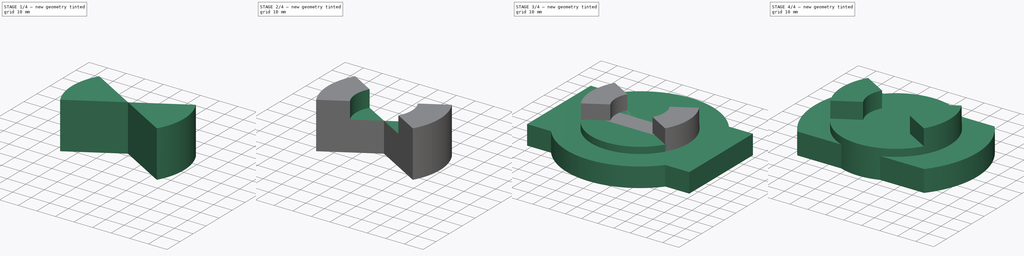
[diagram: build sequence overview — one tinted view per stage of 4, left to right]
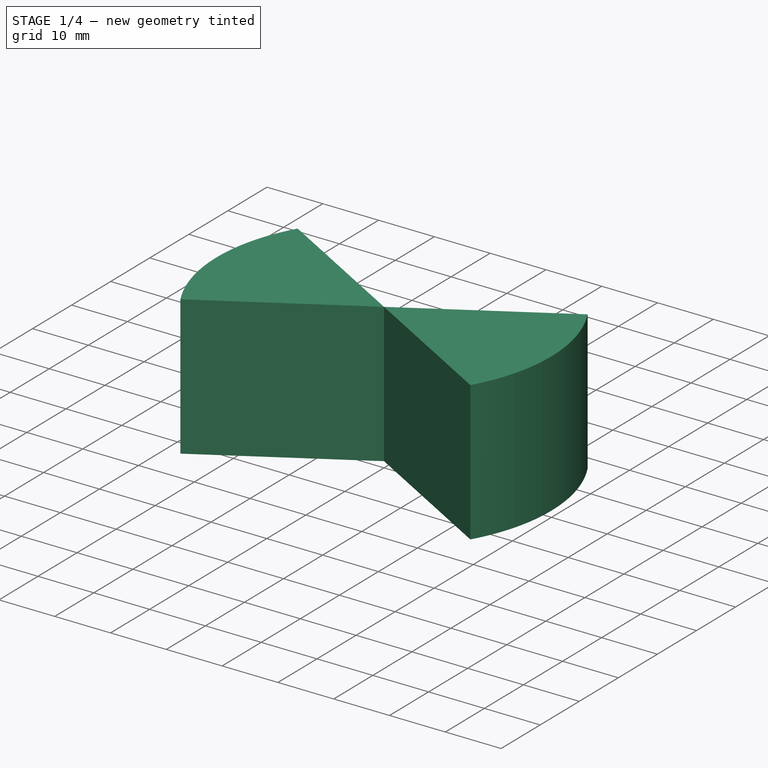
[diagram: stage 1 of 4 — iso view after this stage's code; geometry added in this stage tinted green]
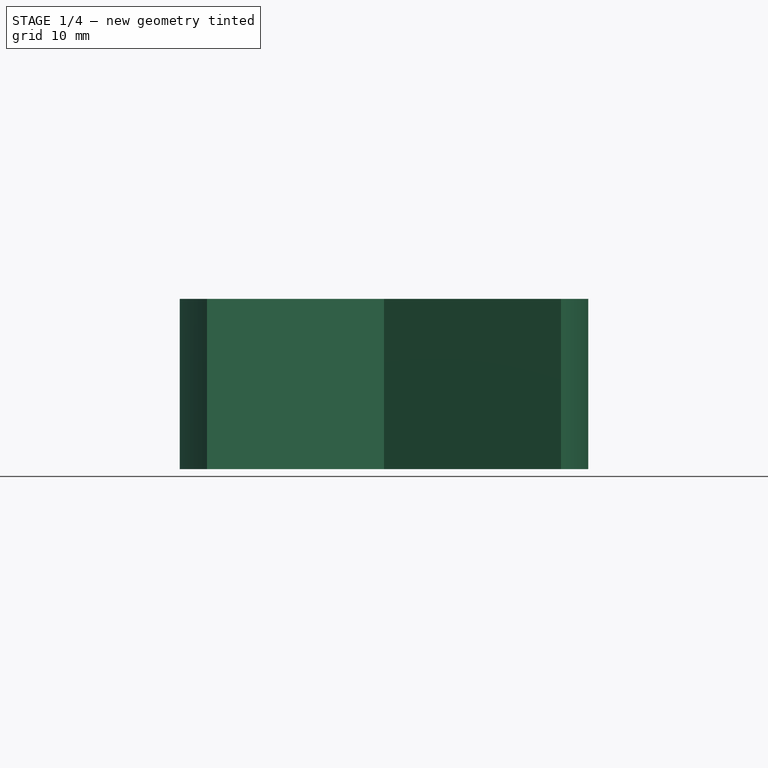
[diagram: stage 1 of 4 — front view after this stage's code; geometry added in this stage tinted green]
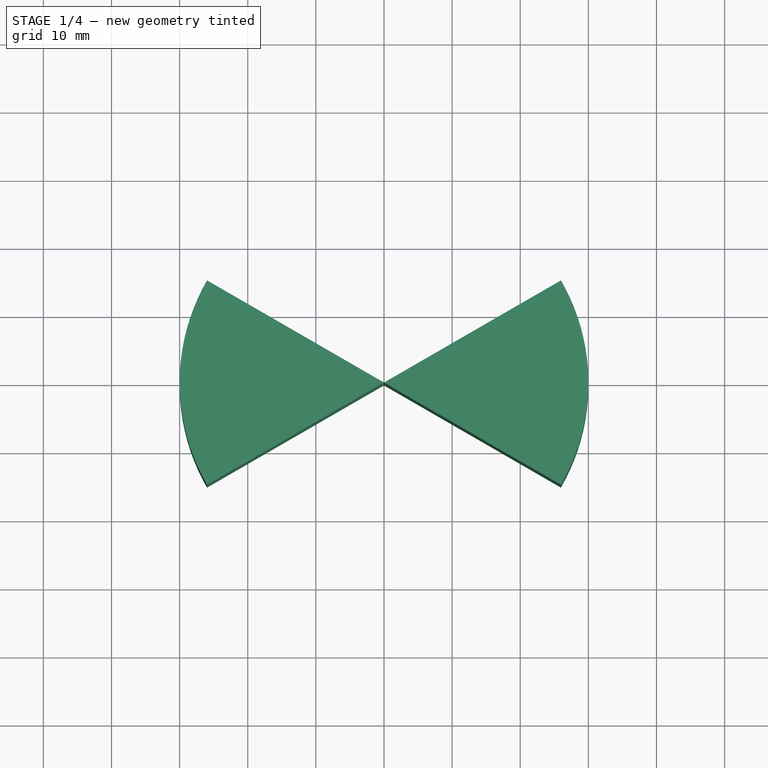
[diagram: stage 1 of 4 — top view after this stage's code; geometry added in this stage tinted green]
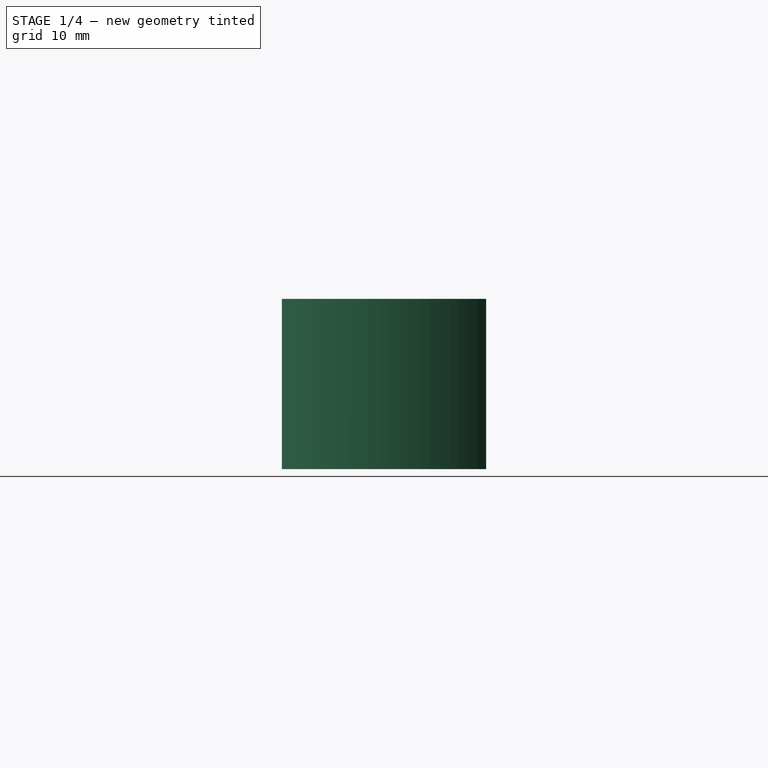
[diagram: stage 1 of 4 — right view after this stage's code; geometry added in this stage tinted green]
FCSTD DOCUMENT  (FreeCAD 0.16R6700 (Git))
Label: ejer5
License: All rights reserved
LicenseURL: http://en.wikipedia.org/wiki/All_rights_reserved
objects: Part::Cylinder×5, Part::MultiFuse×2, Sketcher::SketchObject×1, PartDesign::Pad×1, Part::MultiCommon×1, Part::Cut×1, Part::Feature×1
note: 13 computed .brp shape members not serialized (recipe doc carries the construction recipe); baked Part::Feature solids carry a one-line shape summary decoded from their .brp

FEATURE [Part::Cylinder] Cylinder002  label="Porcion1"
  Angle = 60
  Height = 25
  Placement = pos=(0,0,0) rot=(0,0,-1;0.523599rad)
  Radius = 30
FEATURE [Part::Cylinder] Cylinder003  label="Porcion2"
  Angle = 60
  Height = 25
  Placement = pos=(0,0,0) rot=(0,0,1;2.61799rad)
  Radius = 30
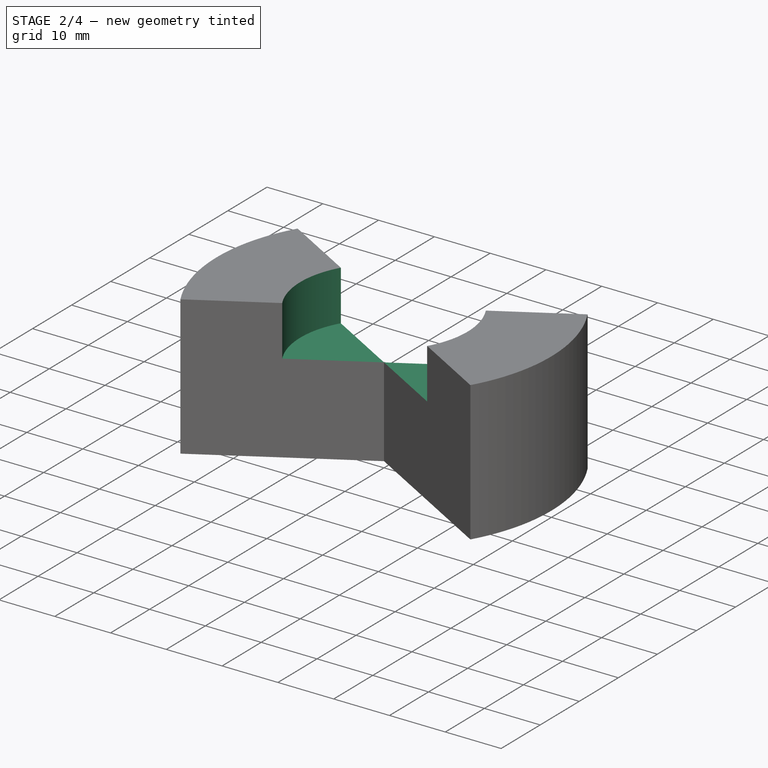
[diagram: stage 2 of 4 — iso view after this stage's code; geometry added in this stage tinted green]
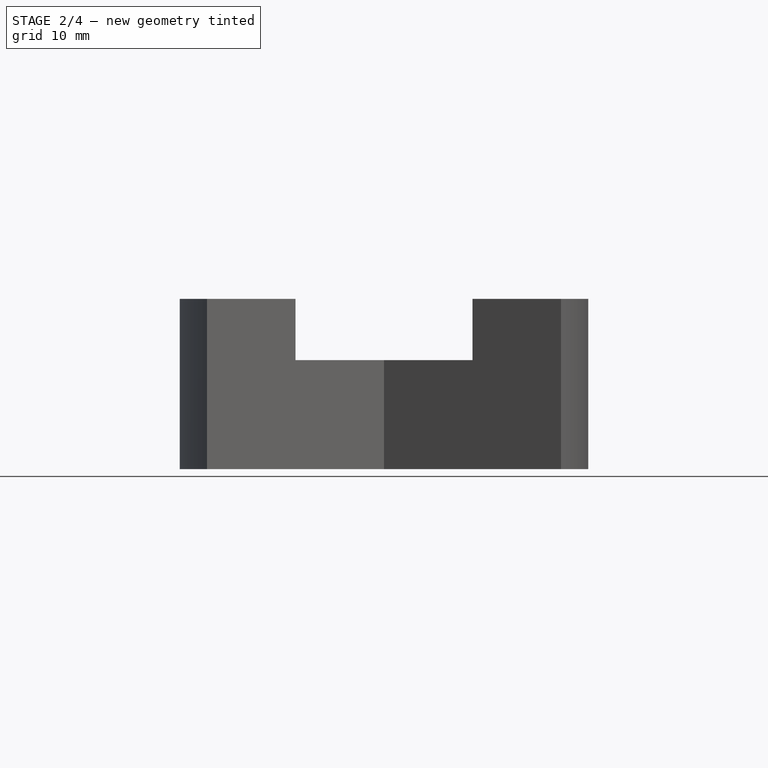
[diagram: stage 2 of 4 — front view after this stage's code; geometry added in this stage tinted green]
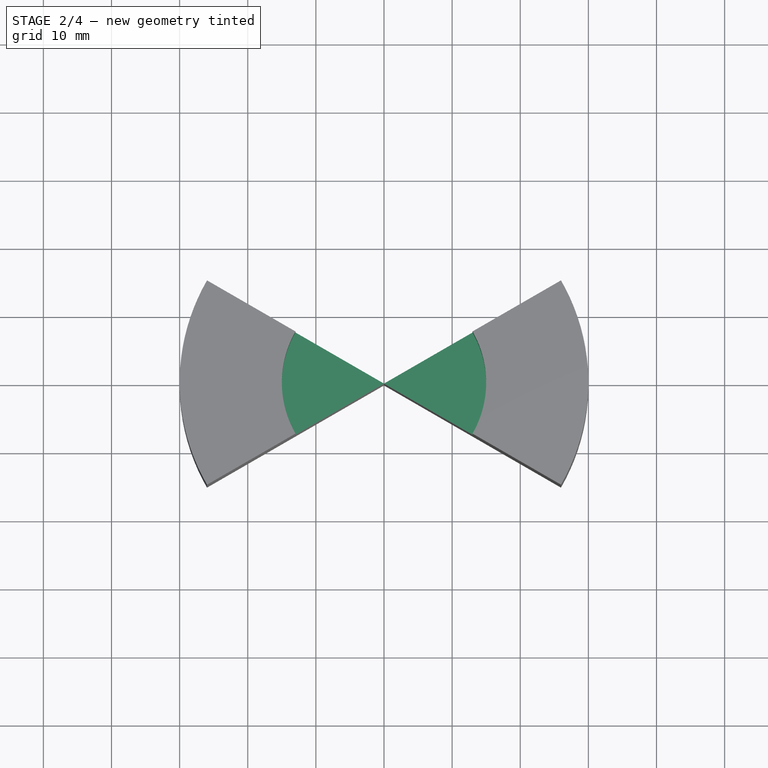
[diagram: stage 2 of 4 — top view after this stage's code; geometry added in this stage tinted green]
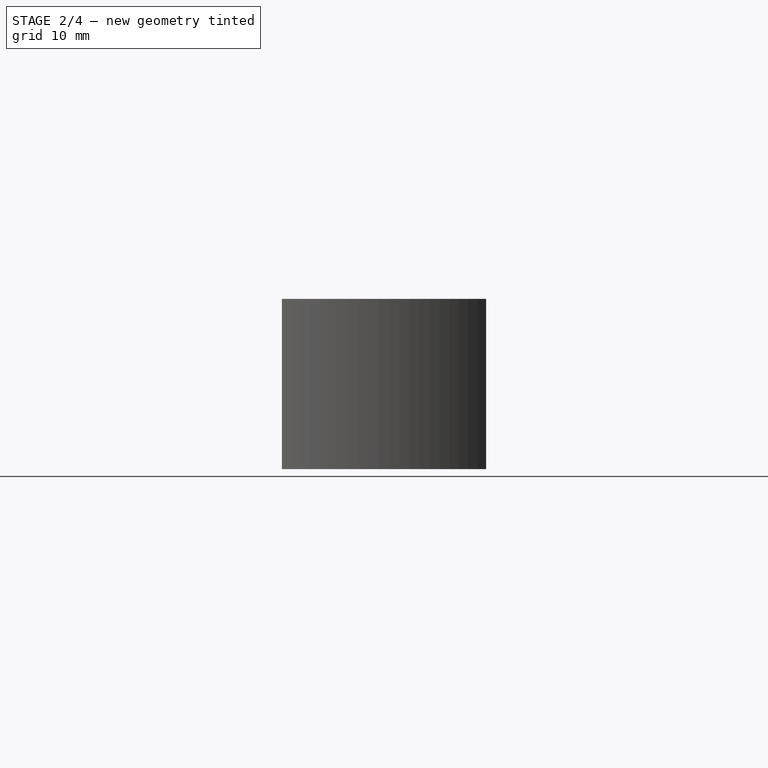
[diagram: stage 2 of 4 — right view after this stage's code; geometry added in this stage tinted green]
FEATURE [Part::Cylinder] Cylinder004  label="Cilindro001"
  Angle = 360
  Height = 10
  Placement = pos=(0,0,16) rot=(0,0,1;0rad)
  Radius = 15
FEATURE [Part::MultiFuse] Fusion
  Shapes = -> [Cylinder003,Cylinder002]
FEATURE [Part::Cut] Cut
  Base = -> Fusion
  Tool = -> Cylinder004
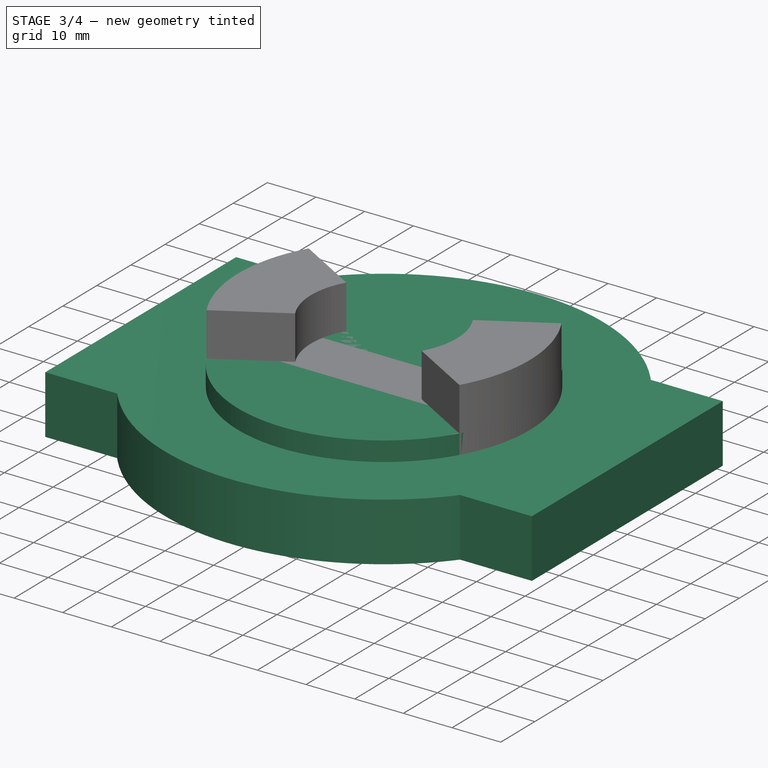
[diagram: stage 3 of 4 — iso view after this stage's code; geometry added in this stage tinted green]
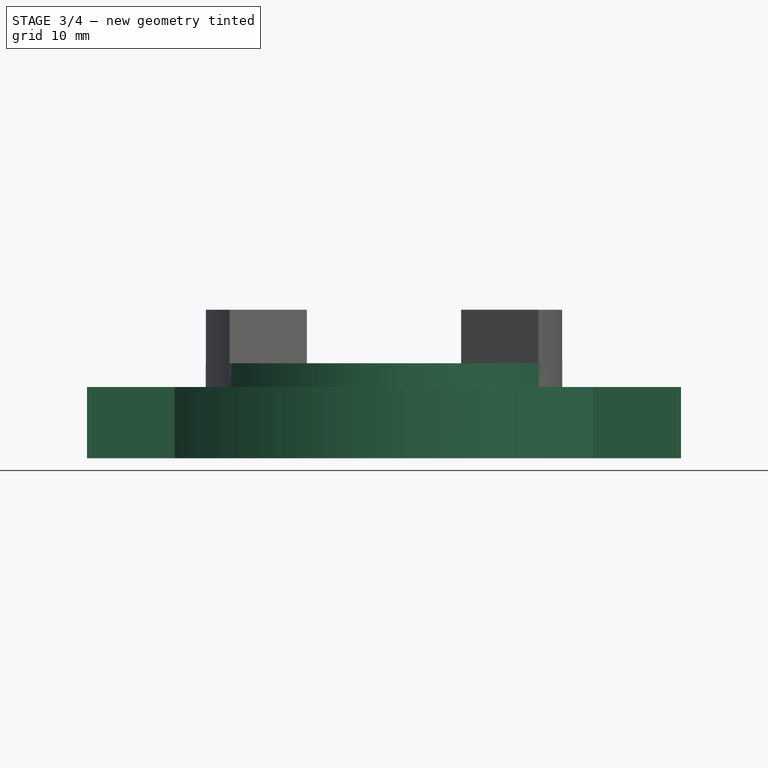
[diagram: stage 3 of 4 — front view after this stage's code; geometry added in this stage tinted green]
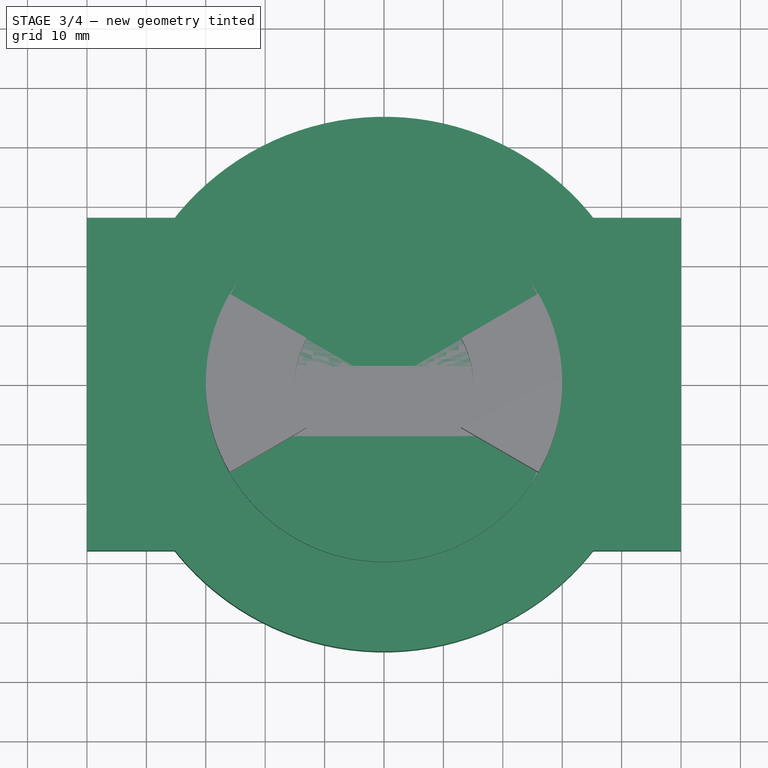
[diagram: stage 3 of 4 — top view after this stage's code; geometry added in this stage tinted green]
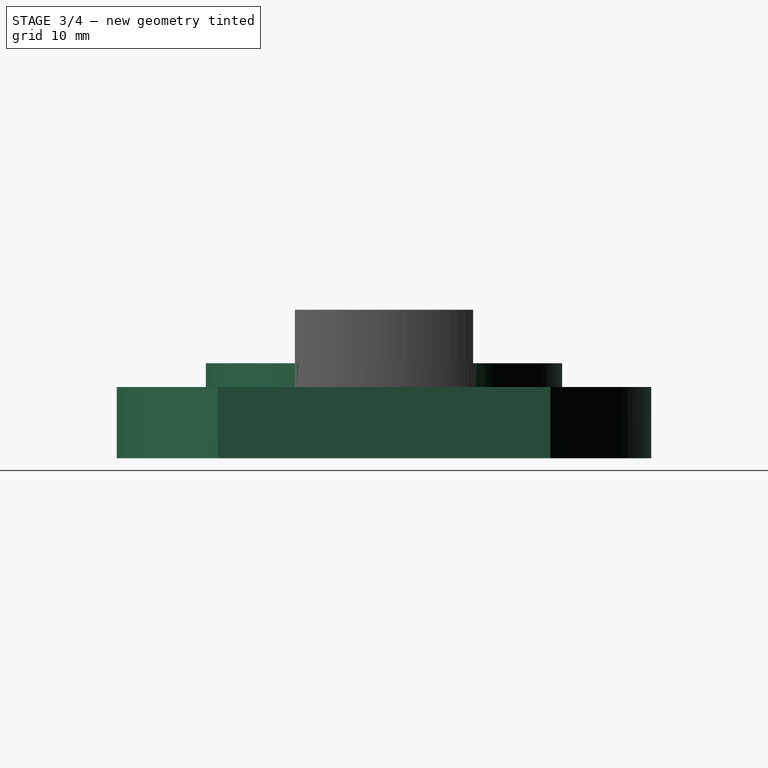
[diagram: stage 3 of 4 — right view after this stage's code; geometry added in this stage tinted green]
FEATURE [Sketcher::SketchObject] Sketch
  sketch-geometry (4):
    g0: LineSegment StartX=-50 StartY=28 StartZ=0 EndX=50 EndY=28 EndZ=0
    g1: LineSegment StartX=50 StartY=28 StartZ=0 EndX=50 EndY=-28 EndZ=0
    g2: LineSegment StartX=50 StartY=-28 StartZ=0 EndX=-50 EndY=-28 EndZ=0
    g3: LineSegment StartX=-50 StartY=-28 StartZ=0 EndX=-50 EndY=28 EndZ=0
  constraints (12):
    c: Coincident(g0,g1)
    c: Coincident(g1,g2)
    c: Coincident(g2,g3)
    c: Coincident(g3,g0)
    c: Horizontal(g0)
    c: Horizontal(g2)
    c: Vertical(g1)
    c: Vertical(g3)
    c: Symmetric(g0,g0,g-2)
    c: Symmetric(g0,g1,g-1)
    c: DistanceY(g1,g1) = 56
    c: DistanceX(g0,g0) = 100
FEATURE [PartDesign::Pad] Pad
  Length = 12
  Length2 = 100
  Sketch = -> Sketch
  Type = 0
FEATURE [Part::Cylinder] Cylinder  label="Cilindro"
  Angle = 360
  Height = 12
  Radius = 45
FEATURE [Part::Cylinder] Cylinder001  label="Cilindro Central"
  Angle = 360
  Height = 16
  Radius = 30
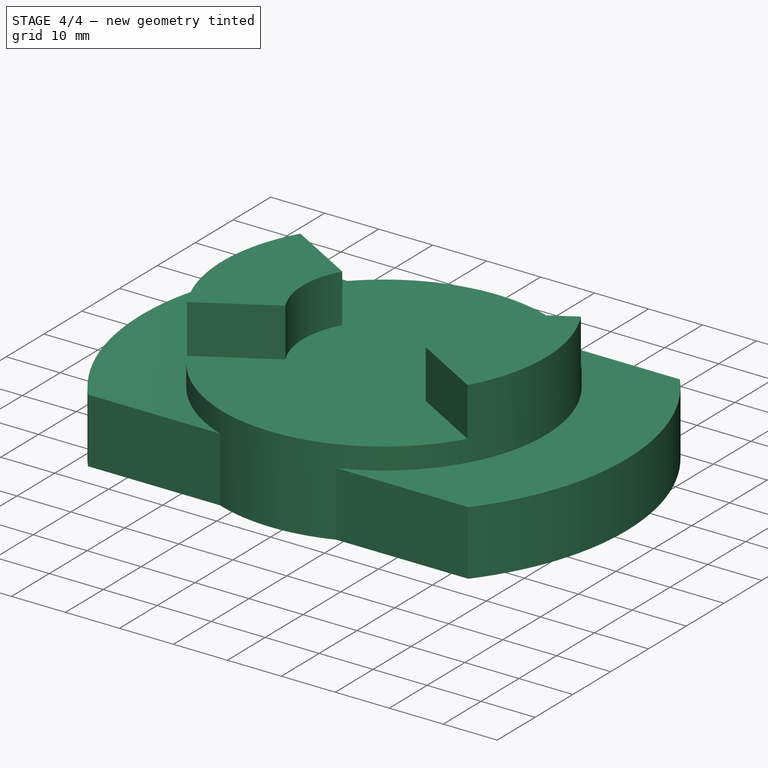
[diagram: stage 4 of 4 — iso view after this stage's code; geometry added in this stage tinted green]
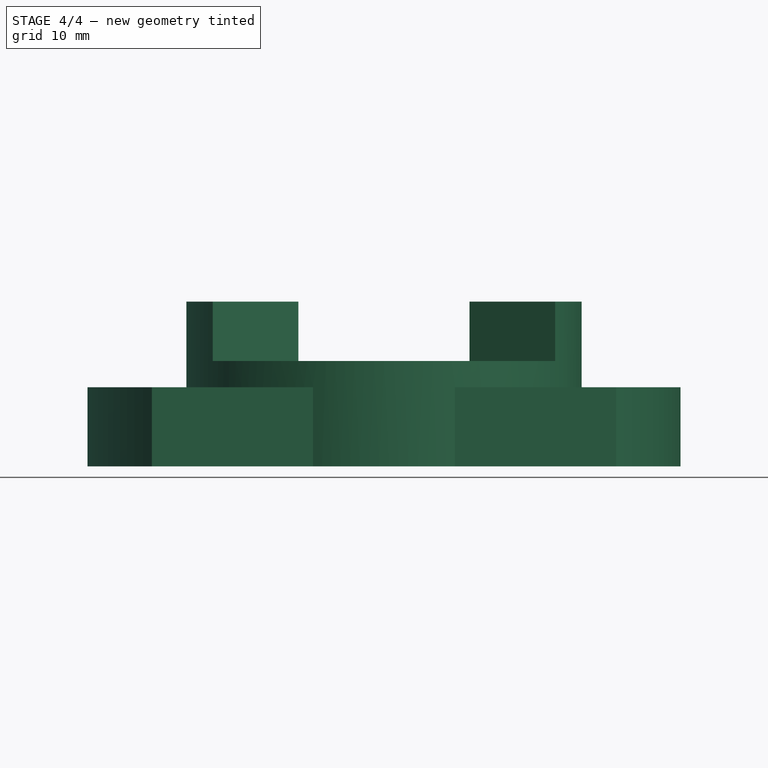
[diagram: stage 4 of 4 — front view after this stage's code; geometry added in this stage tinted green]
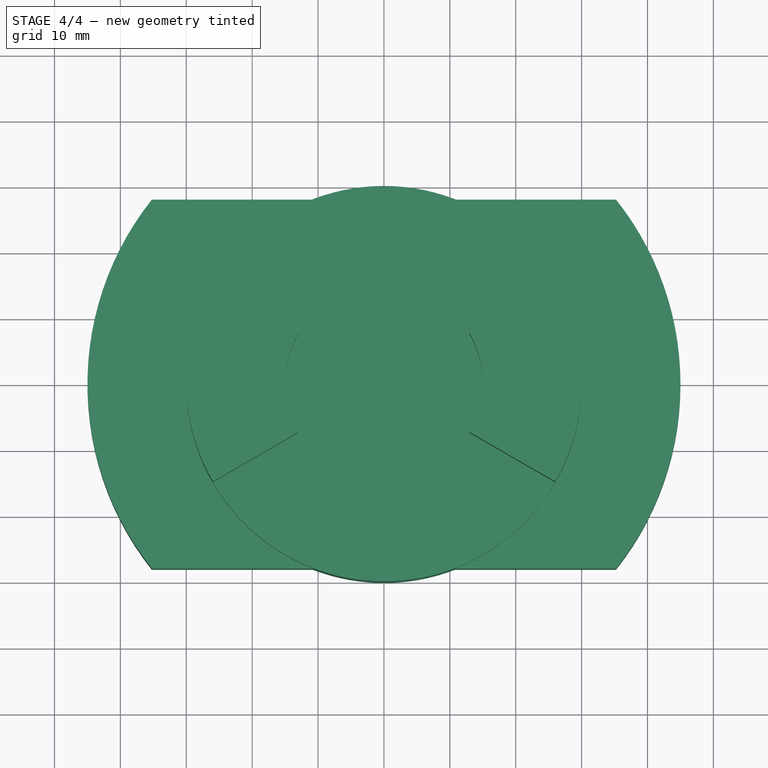
[diagram: stage 4 of 4 — top view after this stage's code; geometry added in this stage tinted green]
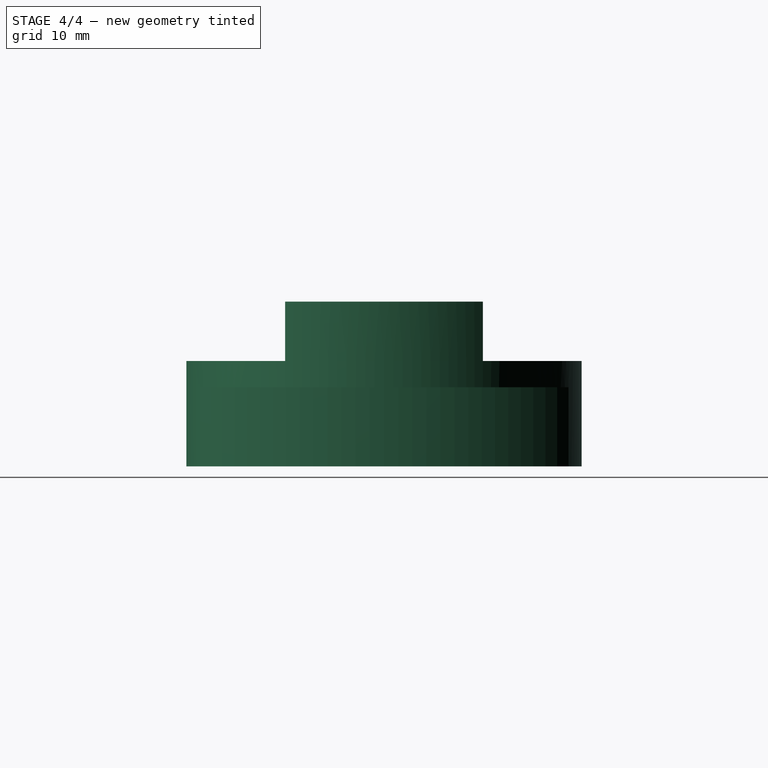
[diagram: stage 4 of 4 — right view after this stage's code; geometry added in this stage tinted green]
FEATURE [Part::MultiCommon] Common
  Shapes = -> [Pad,Cylinder]
FEATURE [Part::MultiFuse] Fusion001
  Shapes = -> [Cut,Common,Cylinder001]
FEATURE [Part::Feature] Fusion001_solid  label="Fusion001 (Solid)"
  shape: bbox 90 x 60 x 25 mm, 35 faces (baked)
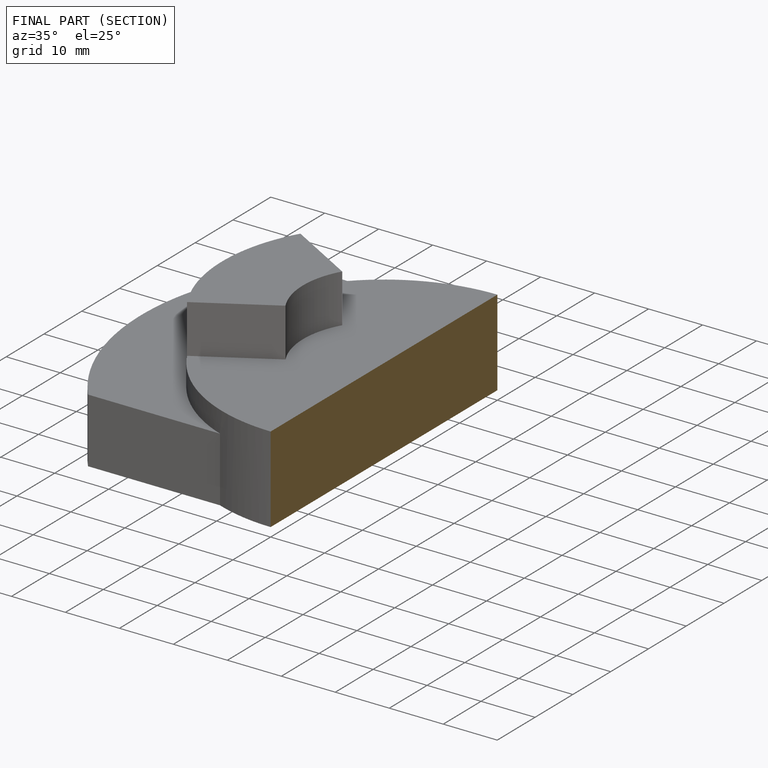
[diagram: finished part — half-section view (interior)]
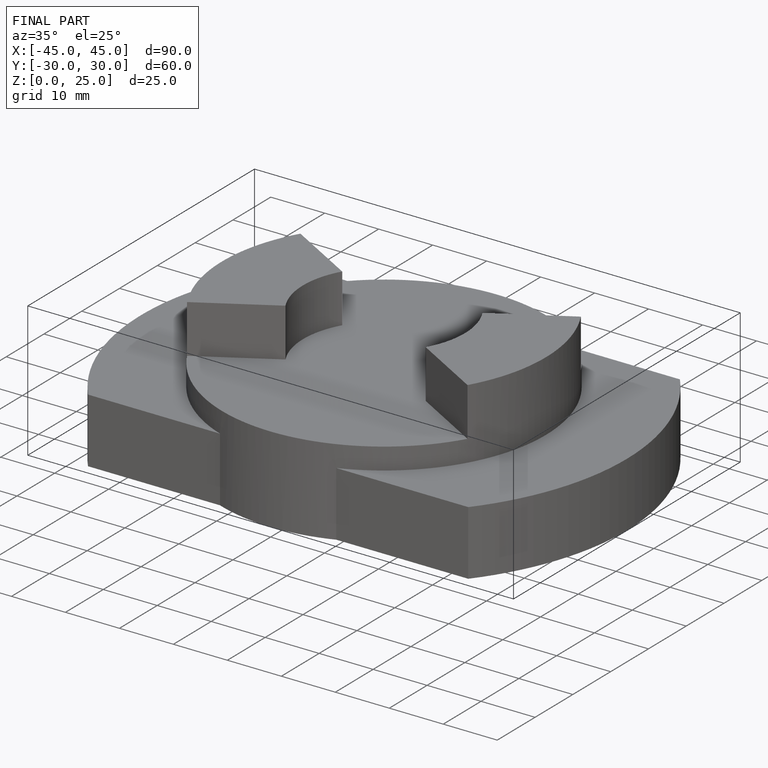
[diagram: finished part — iso view with bounding-box wireframe]
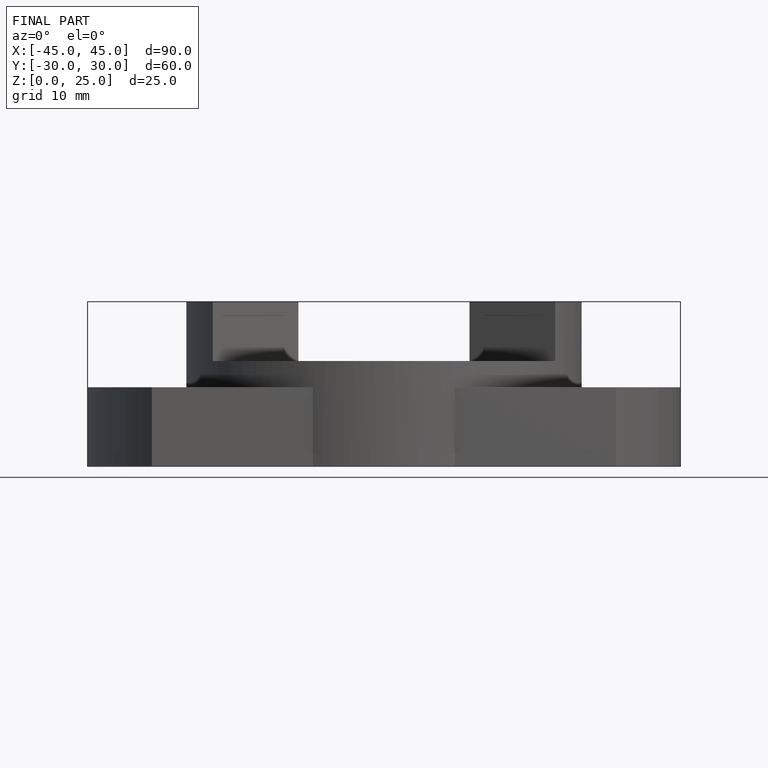
[diagram: finished part — front view with bounding-box wireframe]
